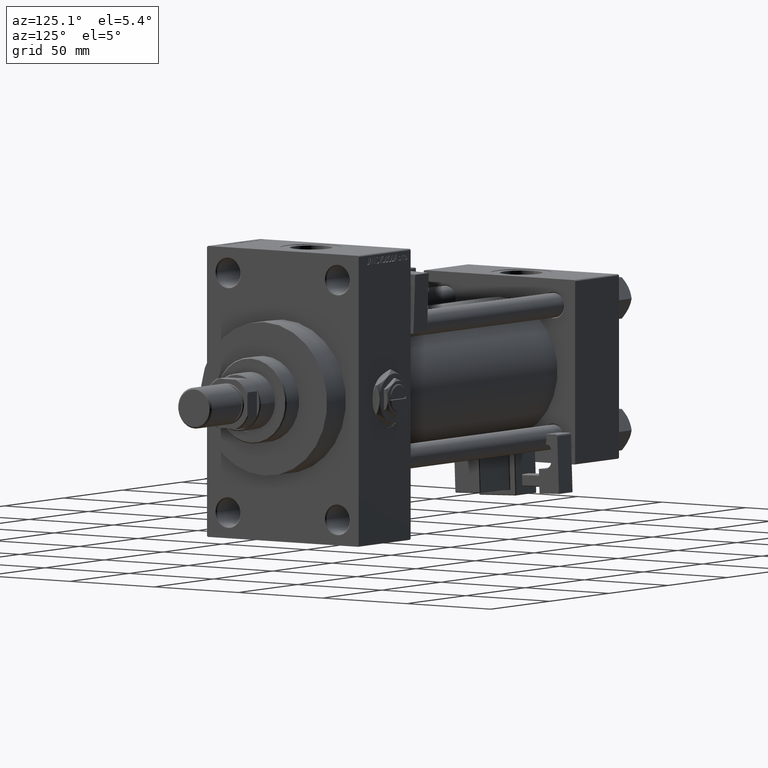
[diagram: clean part render]
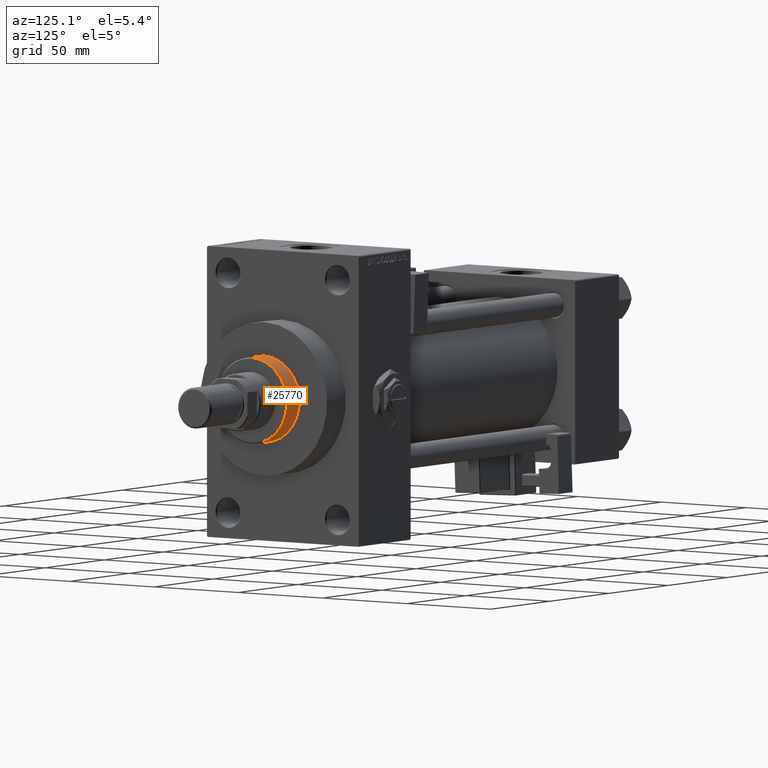
[diagram: same view with one face highlighted and labeled with its STEP entity id]
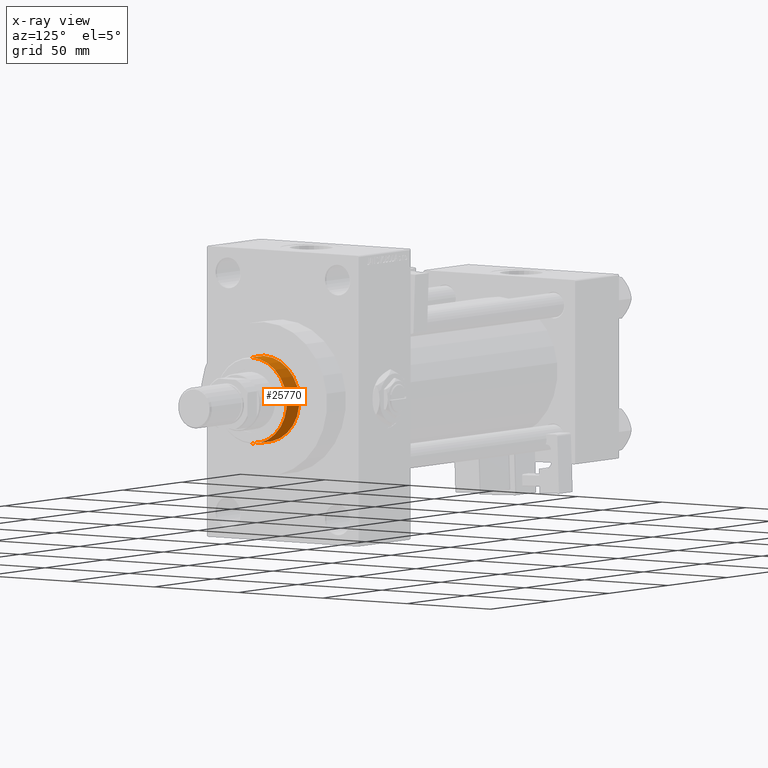
[diagram: x-ray of the same camera — body ghosted, the highlighted face saturated]
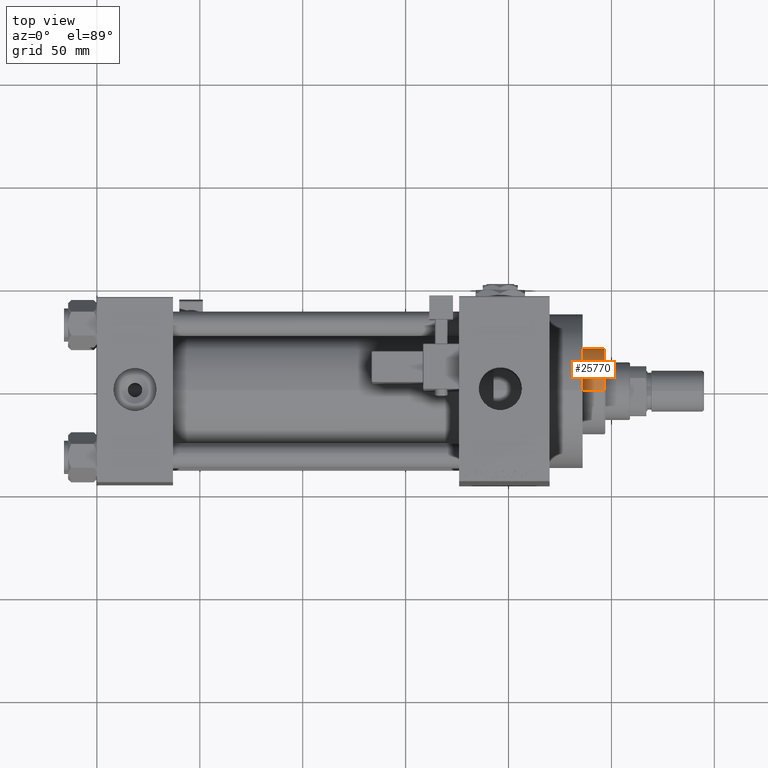
[diagram: same view with one face highlighted and labeled with its STEP entity id]
A machine part, auxiliary view. The second image highlights one B-rep face of the part: STEP entity #25770.
The next image is the same camera in x-ray: the body ghosted, the highlighted face saturated — about 0% of this face is hidden behind the body in this view.
A second angle (top view) of the same face is appended — the face is thin or edge-on in the first view.
In plain terms, the highlighted cylindrical surface (partial cylindrical patch) has radius 21 mm, axis along (-1, 0, 0).
Its self-contained STEP definition (entity closure, byte-faithful):
#125 = EDGE_CURVE ( 'NONE', #8635, #25303, #29752, .T. ) ;
#1849 = DIRECTION ( 'NONE',  ( 1.000000000000000000, 0.000000000000000000, 0.000000000000000000 ) ) ;
#2080 = CARTESIAN_POINT ( 'NONE',  ( -21.00000000000000000, 0.000000000000000000, 54.26000000000000512 ) ) ;
#3621 = DIRECTION ( 'NONE',  ( -1.000000000000000000, 0.000000000000000000, 0.000000000000000000 ) ) ;
#3872 = FACE_OUTER_BOUND ( 'NONE', #43706, .T. ) ;
#4394 = CARTESIAN_POINT ( 'NONE',  ( 0.000000000000000000, 0.000000000000000000, 54.26000000000000512 ) ) ;
#8316 = CYLINDRICAL_SURFACE ( 'NONE', #51655, 21.00000000000000000 ) ;
#8635 = VERTEX_POINT ( 'NONE', #29529 ) ;
#9276 = CARTESIAN_POINT ( 'NONE',  ( -21.00000000000000000, 0.000000000000000000, 43.25999999999999801 ) ) ;
#12933 = VECTOR ( 'NONE', #50088, 1000.000000000000000 ) ;
#13218 = ORIENTED_EDGE ( 'NONE', *, *, #125, .T. ) ;
#14071 = AXIS2_PLACEMENT_3D ( 'NONE', #30289, #26908, #1849 ) ;
#15461 = DIRECTION ( 'NONE',  ( 0.000000000000000000, 0.000000000000000000, -1.000000000000000000 ) ) ;
#18007 = LINE ( 'NONE', #46915, #19185 ) ;
#19185 = VECTOR ( 'NONE', #25812, 1000.000000000000000 ) ;
#20014 = CARTESIAN_POINT ( 'NONE',  ( 21.00000000000000000, 2.571758278209441661E-15, 43.25999999999999801 ) ) ;
#22122 = CIRCLE ( 'NONE', #51275, 21.00000000000000000 ) ;
#23137 = EDGE_CURVE ( 'NONE', #25303, #50984, #25748, .T. ) ;
#24797 = EDGE_CURVE ( 'NONE', #37152, #50984, #18007, .T. ) ;
#25303 = VERTEX_POINT ( 'NONE', #9276 ) ;
#25533 = CARTESIAN_POINT ( 'NONE',  ( 21.00000000000000000, 2.571758278209441661E-15, 53.76000000000001933 ) ) ;
#25748 = CIRCLE ( 'NONE', #14071, 21.00000000000000000 ) ;
#25770 = ADVANCED_FACE ( 'NONE', ( #3872 ), #8316, .T. ) ;
#25812 = DIRECTION ( 'NONE',  ( -0.000000000000000000, -0.000000000000000000, -1.000000000000000000 ) ) ;
#26244 = ORIENTED_EDGE ( 'NONE', *, *, #24797, .F. ) ;
#26908 = DIRECTION ( 'NONE',  ( 0.000000000000000000, 0.000000000000000000, 1.000000000000000000 ) ) ;
#29529 = CARTESIAN_POINT ( 'NONE',  ( -21.00000000000000000, 0.000000000000000000, 53.76000000000001933 ) ) ;
#29752 = LINE ( 'NONE', #2080, #12933 ) ;
#30289 = CARTESIAN_POINT ( 'NONE',  ( 0.000000000000000000, 0.000000000000000000, 43.25999999999999801 ) ) ;
#37152 = VERTEX_POINT ( 'NONE', #25533 ) ;
#38204 = EDGE_CURVE ( 'NONE', #37152, #8635, #22122, .T. ) ;
#40381 = DIRECTION ( 'NONE',  ( -0.000000000000000000, -0.000000000000000000, -1.000000000000000000 ) ) ;
#43706 = EDGE_LOOP ( 'NONE', ( #26244, #47414, #13218, #51301 ) ) ;
#46915 = CARTESIAN_POINT ( 'NONE',  ( 21.00000000000000000, 2.571758278209441661E-15, 54.26000000000000512 ) ) ;
#47414 = ORIENTED_EDGE ( 'NONE', *, *, #38204, .T. ) ;
#47748 = CARTESIAN_POINT ( 'NONE',  ( 0.000000000000000000, 0.000000000000000000, 53.76000000000001933 ) ) ;
#50088 = DIRECTION ( 'NONE',  ( -0.000000000000000000, -0.000000000000000000, -1.000000000000000000 ) ) ;
#50984 = VERTEX_POINT ( 'NONE', #20014 ) ;
#51174 = DIRECTION ( 'NONE',  ( 1.000000000000000000, 0.000000000000000000, 0.000000000000000000 ) ) ;
#51275 = AXIS2_PLACEMENT_3D ( 'NONE', #47748, #15461, #51174 ) ;
#51301 = ORIENTED_EDGE ( 'NONE', *, *, #23137, .T. ) ;
#51655 = AXIS2_PLACEMENT_3D ( 'NONE', #4394, #40381, #3621 ) ;